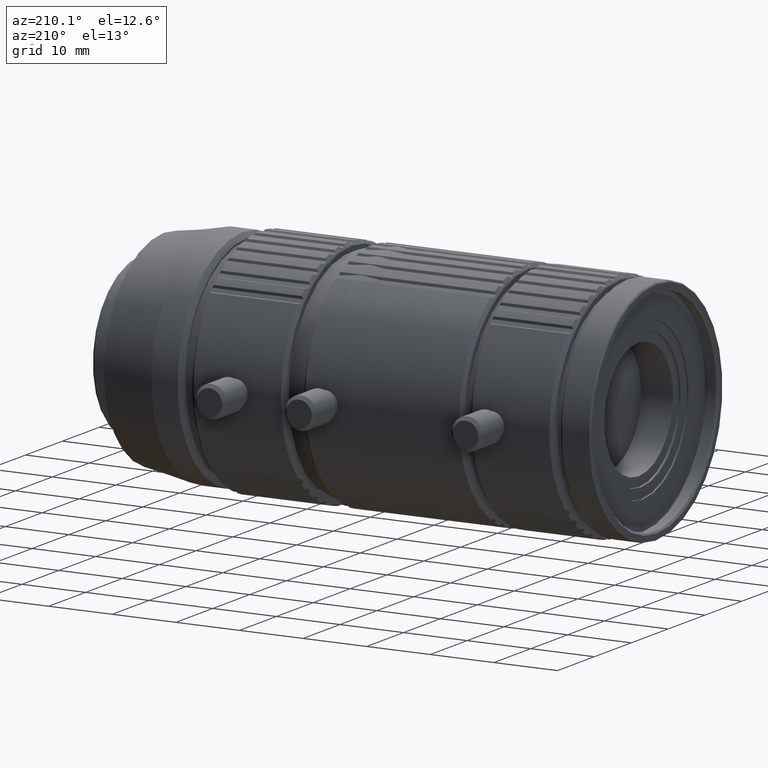
[diagram: clean part render]
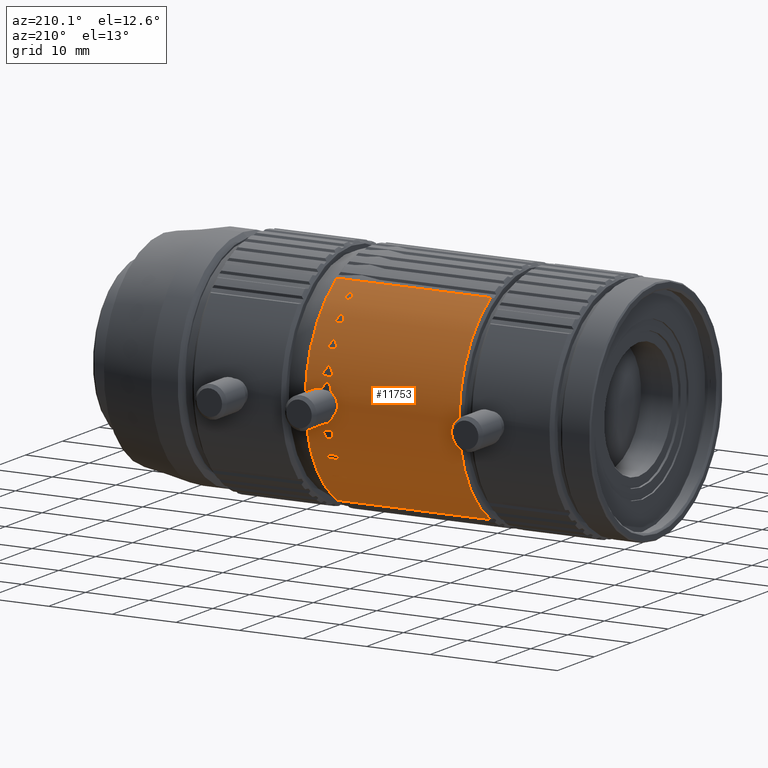
[diagram: same view with one face highlighted and labeled with its STEP entity id]
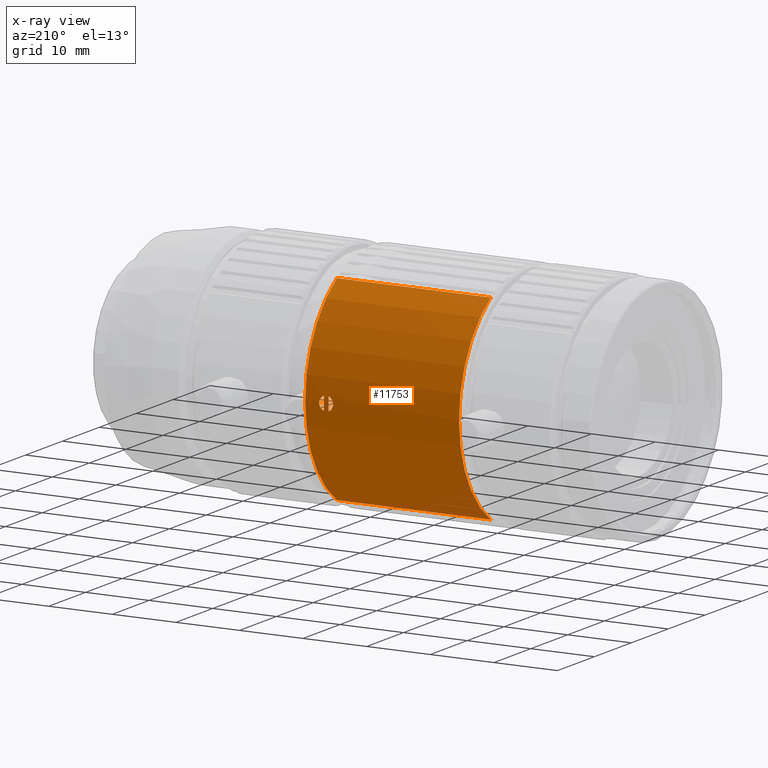
[diagram: x-ray of the same camera — body ghosted, the highlighted face saturated]
A machine part, auxiliary view. The second image highlights one B-rep face of the part: STEP entity #11753.
The next image is the same camera in x-ray: the body ghosted, the highlighted face saturated — about 0% of this face is hidden behind the body in this view.
In plain terms, the highlighted cylindrical surface (partial cylindrical patch) has radius 18.25 mm, axis along (-1, 0, 0).
Its self-contained STEP definition (entity closure, byte-faithful):
#183=B_SPLINE_CURVE_WITH_KNOTS('',3,(#18475,#18476,#18477,#18478),
 .UNSPECIFIED.,.F.,.F.,(4,4),(3.92481186439753E-17,0.00206246665742315),
 .UNSPECIFIED.);
#184=B_SPLINE_CURVE_WITH_KNOTS('',3,(#18483,#18484,#18485,#18486),
 .UNSPECIFIED.,.F.,.F.,(4,4),(2.42861286636753E-17,0.00206246665742316),
 .UNSPECIFIED.);
#185=B_SPLINE_CURVE_WITH_KNOTS('',3,(#18493,#18494,#18495,#18496,#18497),
 .UNSPECIFIED.,.F.,.F.,(4,1,4),(3.52273887190826E-16,0.00132934025964672,
0.0026586805192931),.UNSPECIFIED.);
#186=B_SPLINE_CURVE_WITH_KNOTS('',3,(#18498,#18499,#18500,#18501,#18502),
 .UNSPECIFIED.,.F.,.F.,(4,1,4),(4.0917071778363E-16,0.00132934025964673,
0.00265868051929305),.UNSPECIFIED.);
#330=CYLINDRICAL_SURFACE('',#12973,18.25);
#577=LINE('',#17198,#981);
#580=LINE('',#17217,#984);
#981=VECTOR('',#13916,1000.);
#984=VECTOR('',#13931,1000.);
#3561=ORIENTED_EDGE('',*,*,#4804,.T.);
#3562=ORIENTED_EDGE('',*,*,#4810,.T.);
#3563=ORIENTED_EDGE('',*,*,#4806,.T.);
#3564=ORIENTED_EDGE('',*,*,#4809,.T.);
#3565=ORIENTED_EDGE('',*,*,#4262,.T.);
#3566=ORIENTED_EDGE('',*,*,#4959,.F.);
#3567=ORIENTED_EDGE('',*,*,#4270,.F.);
#3568=ORIENTED_EDGE('',*,*,#4925,.T.);
#4262=EDGE_CURVE('',#5455,#5454,#577,.T.);
#4270=EDGE_CURVE('',#5460,#5457,#580,.T.);
#4804=EDGE_CURVE('',#5890,#5891,#183,.T.);
#4806=EDGE_CURVE('',#5893,#5892,#184,.T.);
#4809=EDGE_CURVE('',#5892,#5893,#185,.T.);
#4810=EDGE_CURVE('',#5891,#5890,#186,.T.);
#4925=EDGE_CURVE('',#5460,#5455,#6548,.T.);
#4959=EDGE_CURVE('',#5457,#5454,#6582,.T.);
#5454=VERTEX_POINT('',#17197);
#5455=VERTEX_POINT('',#17199);
#5457=VERTEX_POINT('',#17211);
#5460=VERTEX_POINT('',#17216);
#5890=VERTEX_POINT('',#18479);
#5891=VERTEX_POINT('',#18480);
#5892=VERTEX_POINT('',#18482);
#5893=VERTEX_POINT('',#18487);
#6548=CIRCLE('',#12774,18.25);
#6582=CIRCLE('',#12809,18.2500000000001);
#7166=EDGE_LOOP('',(#3561,#3562));
#7167=EDGE_LOOP('',(#3563,#3564));
#7168=EDGE_LOOP('',(#3565,#3566,#3567,#3568));
#7705=FACE_BOUND('',#7166,.T.);
#7706=FACE_BOUND('',#7167,.T.);
#7707=FACE_BOUND('',#7168,.T.);
#11753=ADVANCED_FACE('',(#7705,#7706,#7707),#330,.T.);
#12774=AXIS2_PLACEMENT_3D('',#18683,#15362,#15363);
#12809=AXIS2_PLACEMENT_3D('',#18719,#15432,#15433);
#12973=AXIS2_PLACEMENT_3D('',#18896,#15760,#15761);
#13916=DIRECTION('',(-1.,0.,0.));
#13931=DIRECTION('',(-1.,0.,0.));
#15362=DIRECTION('',(-1.,0.,0.));
#15363=DIRECTION('',(0.,0.,1.));
#15432=DIRECTION('',(-1.,0.,0.));
#15433=DIRECTION('',(0.,0.,1.));
#15760=DIRECTION('',(-1.,0.,0.));
#15761=DIRECTION('',(0.,0.,1.));
#17197=CARTESIAN_POINT('',(-74.526,9.67348794075297,-15.4753394489462));
#17198=CARTESIAN_POINT('',(24.4598437097654,9.67348333617739,-15.475332082692));
#17199=CARTESIAN_POINT('',(-50.3259978282522,9.67348678960905,-15.4753376073826));
#17211=CARTESIAN_POINT('',(-74.5259978809273,9.67552925223058,15.4740657564645));
#17216=CARTESIAN_POINT('',(-50.3260021190728,9.67552925223057,15.4740657564645));
#17217=CARTESIAN_POINT('',(-62.4260000000001,9.6755234099068,15.4740669102969));
#18475=CARTESIAN_POINT('',(-53.2420364245292,18.2208651832806,1.03081131770688));
#18476=CARTESIAN_POINT('',(-53.2464503504261,18.2597113173889,0.344157843574441));
#18477=CARTESIAN_POINT('',(-53.2464503519724,18.2597113309978,-0.344157603018437));
#18478=CARTESIAN_POINT('',(-53.2420364245293,18.2208651832807,-1.03081131770499));
#18479=CARTESIAN_POINT('',(-53.2420364245306,18.2208651832806,1.03081131770693));
#18480=CARTESIAN_POINT('',(-53.2420364245303,18.2208651832806,-1.03081131770679));
#18482=CARTESIAN_POINT('',(-54.0099635754697,18.2208651832806,1.03081131770681));
#18483=CARTESIAN_POINT('',(-54.0099635754708,18.2208651832806,-1.03081131770687));
#18484=CARTESIAN_POINT('',(-54.005549649574,18.2597113173889,-0.344157843574422));
#18485=CARTESIAN_POINT('',(-54.0055496480276,18.2597113309978,0.344157603018477));
#18486=CARTESIAN_POINT('',(-54.0099635754708,18.2208651832807,1.03081131770504));
#18487=CARTESIAN_POINT('',(-54.0099635754694,18.2208651832806,-1.0308113177069));
#18493=CARTESIAN_POINT('',(-54.00996357547,18.2208651832806,1.03081131770669));
#18494=CARTESIAN_POINT('',(-54.4311086774982,18.2297398650007,0.873940340071143));
#18495=CARTESIAN_POINT('',(-55.0208917994404,18.2702601354352,0.00103908843061064));
#18496=CARTESIAN_POINT('',(-54.4311072331,18.2297398345633,-0.873940878090589));
#18497=CARTESIAN_POINT('',(-54.0099635754695,18.2208651832806,-1.03081131770687));
#18498=CARTESIAN_POINT('',(-53.2420364245299,18.2208651832806,-1.03081131770664));
#18499=CARTESIAN_POINT('',(-52.8208913225017,18.2297398650007,-0.873940340071065));
#18500=CARTESIAN_POINT('',(-52.2311082005596,18.2702601354352,-0.001039088430471));
#18501=CARTESIAN_POINT('',(-52.8208927669001,18.2297398345633,0.873940878090684));
#18502=CARTESIAN_POINT('',(-53.2420364245306,18.2208651832806,1.03081131770692));
#18683=CARTESIAN_POINT('',(-50.326,0.,0.));
#18719=CARTESIAN_POINT('',(-74.526,0.,0.));
#18896=CARTESIAN_POINT('',(-60.,0.,0.));